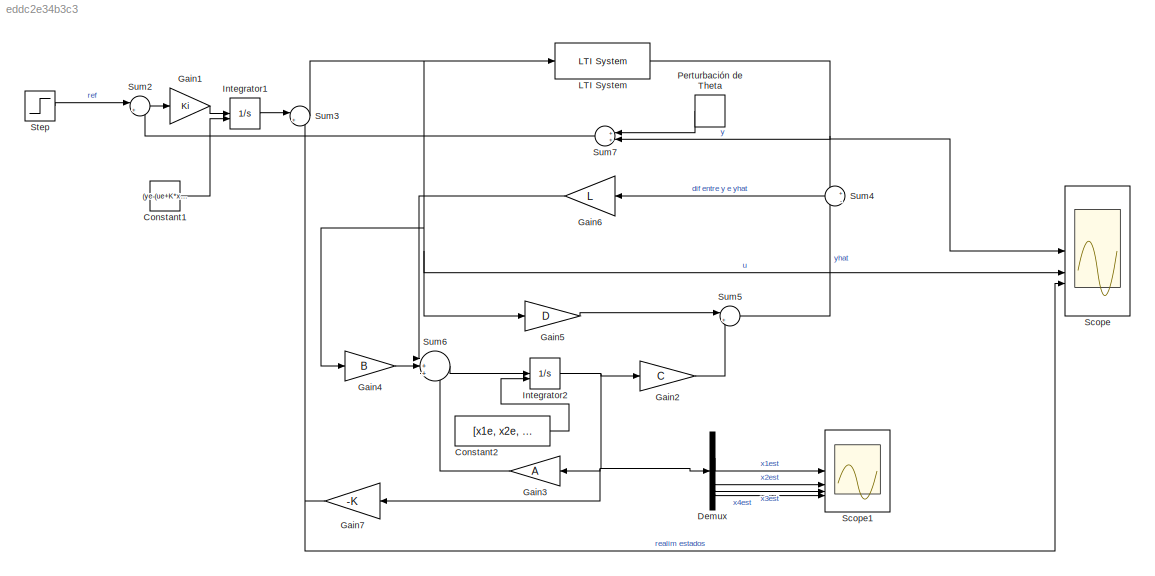
MODEL slx_eddc2e34b3c3
KIND model
CONFIG AbsTol = auto
CONFIG EnableMultiTasking = off
CONFIG MaxStep = auto
CONFIG MinStep = auto
CONFIG RelTol = 1e-3
CONFIG SampleTimeConstraint = Unconstrained
CONFIG SolverName = VariableStepAuto
CONFIG StartTime = 0.0
CONFIG StopTime = 6
BLOCK [Constant] Constant1
  Value = (ye-(ue+K*xeq))
BLOCK [Constant] Constant2
  Value = [x1e, x2e, x3e, x4e]
BLOCK [Demux] Demux
BLOCK [Gain] Gain1
  Gain = Ki
BLOCK [Gain] Gain2
  Gain = C
  Multiplication = Matrix(K*u)
BLOCK [Gain] Gain3
  Gain = A
  Multiplication = Matrix(K*u)
  NameLocation = top
BLOCK [Gain] Gain4
  Gain = B
  Multiplication = Matrix(K*u)
BLOCK [Gain] Gain5
  Gain = D
  Multiplication = Matrix(K*u)
BLOCK [Gain] Gain6
  Gain = L
  Multiplication = Matrix(K*u)
  NameLocation = top
BLOCK [Gain] Gain7
  Gain = -K
  Multiplication = Matrix(K*u)
  NameLocation = top
BLOCK [Integrator] Integrator1
  InitialConditionSource = external
BLOCK [Integrator] Integrator2
  InitialConditionSource = external
BLOCK [Reference] LTI System  REF=cstblocks/LTI System
  SourceBlock = cstblocks/LTI System
  SourceType = LTI Block
BLOCK [DiscretePulseGenerator] Perturbación de Theta
  Amplitude = -30
  NameLocation = top
  Period = 12
  PhaseDelay = 2
  PulseType = Time based
  PulseWidth = 0.3
BLOCK [Scope] Scope
  Floating = off
  NumInputPorts = 3
  ScopeSpecificationString = Simulink.scopes.TimeScopeBlockCfg('CurrentConfiguration', extmgr.ConfigurationSet(extmgr.Configuration('Core','General UI',true),extmgr.Configuration('Core','Source UI',true),extmgr.Configuration('Sources','WiredSimulink',true),extmgr.Configuration('Visuals','Time Domain',true,'SerializedDisplays',{struct('MinYLimReal','-0.30004','MaxYLimReal','0.07643','YLabelReal','','MinYLimMag','0.00000','MaxY...<+2652ch>
BLOCK [Scope] Scope1
  Floating = off
  NumInputPorts = 4
  ScopeSpecificationString = Simulink.scopes.TimeScopeBlockCfg('CurrentConfiguration', extmgr.ConfigurationSet(extmgr.Configuration('Core','General UI',true),extmgr.Configuration('Core','Source UI',true),extmgr.Configuration('Sources','WiredSimulink',true,'DataLoggingVariableName','ScopeData1'),extmgr.Configuration('Visuals','Time Domain',true,'SerializedDisplays',{struct('MinYLimReal','-0.01124','MaxYLimReal','0.01402','YLab...<+3394ch>
BLOCK [Step] Step
  After = 0
  SampleTime = 0
  Time = 0
BLOCK [Sum] Sum2
  Inputs = |+-
BLOCK [Sum] Sum3
  Inputs = |++
BLOCK [Sum] Sum4
  Inputs = +|-
  NameLocation = top
BLOCK [Sum] Sum5
  Inputs = |++
BLOCK [Sum] Sum6
  Inputs = |++|+
BLOCK [Sum] Sum7
  Inputs = ++|
  NameLocation = top
LINE Constant1:1 -> Integrator1:2
LINE Constant2:1 -> Integrator2:2
LINE Demux:1 -> Scope1:1
LINE Demux:2 -> Scope1:2
LINE Demux:3 -> Scope1:3
LINE Demux:4 -> Scope1:4
LINE Gain1:1 -> Integrator1:1
LINE Gain2:1 -> Sum5:2
LINE Gain3:1 -> Sum6:3
LINE Gain4:1 -> Sum6:2
LINE Gain5:1 -> Sum5:1
LINE Gain6:1 -> Sum6:1
NET Gain7:1 -> Scope:3, Sum3:2
LINE Integrator1:1 -> Sum3:1
NET Integrator2:1 -> Demux:1, Gain2:1, Gain3:1, Gain7:1
NET LTI System:1 -> Scope:1, Sum4:1, Sum7:2
LINE Perturbación de Theta:1 -> Sum7:1
LINE Step:1 -> Sum2:1
LINE Sum2:1 -> Gain1:1
NET Sum3:1 -> Gain4:1, Gain5:1, LTI System:1, Scope:2
LINE Sum4:1 -> Gain6:1
LINE Sum5:1 -> Sum4:2
LINE Sum6:1 -> Integrator2:1
LINE Sum7:1 -> Sum2:2
note: NET lines group one-source signal fan-out (src -> all destinations, sorted); 1:1 wires keep LINE
